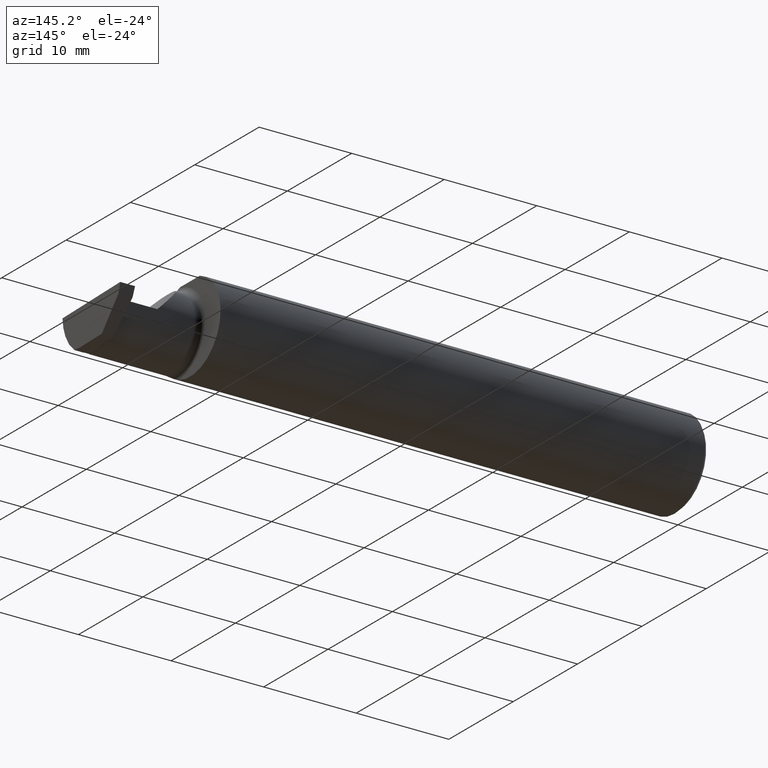
[diagram: clean part render]
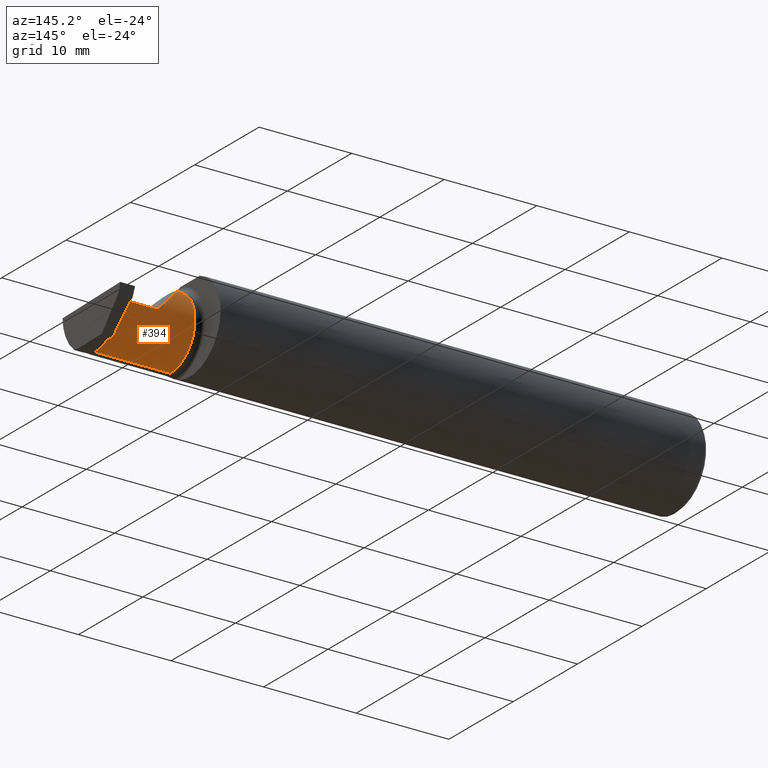
[diagram: same view with one face highlighted and labeled with its STEP entity id]
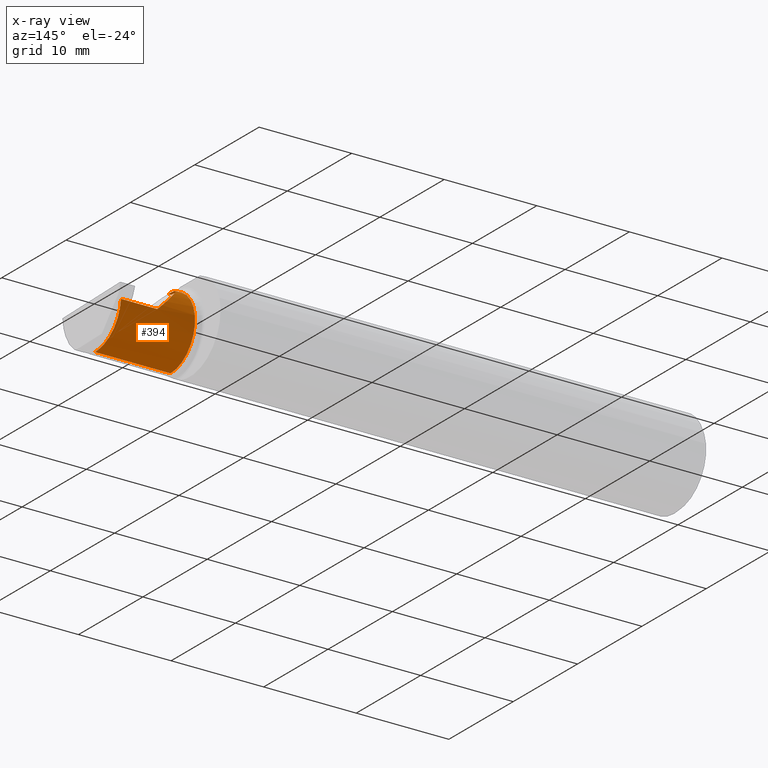
[diagram: x-ray of the same camera — body ghosted, the highlighted face saturated]
A machine part, auxiliary view. The second image highlights one B-rep face of the part: STEP entity #394.
The next image is the same camera in x-ray: the body ghosted, the highlighted face saturated — about 0% of this face is hidden behind the body in this view.
In plain terms, the highlighted cylindrical surface (partial cylindrical patch) has radius 3.81 mm, axis along (-1, -0, -0).
Its self-contained STEP definition (entity closure, byte-faithful):
#64 = CARTESIAN_POINT ( 'NONE',  ( 2.110000000000001208, -0.08334999999999996578, 0.1499999999999999944 ) ) ;
#110 = LINE ( 'NONE', #183, #895 ) ;
#119 = ORIENTED_EDGE ( 'NONE', *, *, #506, .T. ) ;
#131 = CARTESIAN_POINT ( 'NONE',  ( 2.110000000000001208, -0.08334999999999996578, 0.1499999999999999944 ) ) ;
#136 = CARTESIAN_POINT ( 'NONE',  ( 2.075000000000000178, 0.06665000000000002867, 5.204748896376252548E-17 ) ) ;
#151 = B_SPLINE_CURVE_WITH_KNOTS ( 'NONE', 3,
 ( #760, #928, #1007, #431, #847, #602, #829, #924, #267, #351, #525, #914, #691, #1001 ),
 .UNSPECIFIED., .F., .F.,
 ( 4, 2, 2, 2, 2, 2, 4 ),
 ( 0.000000000000000000, 0.001502809041486050622, 0.002254213562229075932, 0.003005618082972101243, 0.003757022603715126554, 0.004508427124458151865, 0.006011236165944202486 ),
 .UNSPECIFIED. ) ;
#156 = ORIENTED_EDGE ( 'NONE', *, *, #237, .T. ) ;
#168 = EDGE_CURVE ( 'NONE', #713, #356, #151, .T. ) ;
#171 = VECTOR ( 'NONE', #793, 39.37007874015748143 ) ;
#174 = ORIENTED_EDGE ( 'NONE', *, *, #168, .T. ) ;
#183 = CARTESIAN_POINT ( 'NONE',  ( 2.075000000000000178, -0.08334999999999995191, -0.1499999999999999944 ) ) ;
#207 = VERTEX_POINT ( 'NONE', #825 ) ;
#220 = CARTESIAN_POINT ( 'NONE',  ( 2.172132034355964691, 0.06665000000000001479, 0.08786796564403576149 ) ) ;
#237 = EDGE_CURVE ( 'NONE', #775, #853, #667, .T. ) ;
#245 = DIRECTION ( 'NONE',  ( -1.000000000000000000, -0.000000000000000000, -0.000000000000000000 ) ) ;
#246 = EDGE_CURVE ( 'NONE', #853, #713, #384, .T. ) ;
#267 = CARTESIAN_POINT ( 'NONE',  ( 2.419625853368147617, 0.008070055702243027207, -0.1193229055796835997 ) ) ;
#292 = CARTESIAN_POINT ( 'NONE',  ( 2.075000000000000178, -0.08334999999999996578, 0.000000000000000000 ) ) ;
#295 = DIRECTION ( 'NONE',  ( 0.000000000000000000, 0.000000000000000000, 1.000000000000000000 ) ) ;
#302 = CIRCLE ( 'NONE', #666, 0.1499999999999999944 ) ;
#351 = CARTESIAN_POINT ( 'NONE',  ( 2.420047394350710590, -0.008191921905021130532, -0.1301800509972567133 ) ) ;
#353 = VECTOR ( 'NONE', #245, 39.37007874015748143 ) ;
#356 = VERTEX_POINT ( 'NONE', #945 ) ;
#384 = LINE ( 'NONE', #136, #171 ) ;
#394 = ADVANCED_FACE ( 'NONE', ( #473 ), #852, .T. ) ;
#416 = VERTEX_POINT ( 'NONE', #572 ) ;
#431 = CARTESIAN_POINT ( 'NONE',  ( 2.417584115952524648, 0.05145648350381303721, -0.06650224100886607814 ) ) ;
#458 = CARTESIAN_POINT ( 'NONE',  ( 2.260000000000000231, 0.06665000000000002867, 2.939152317953647352E-17 ) ) ;
#473 = FACE_OUTER_BOUND ( 'NONE', #604, .T. ) ;
#486 = CARTESIAN_POINT ( 'NONE',  ( 2.075000000000000178, -0.08334999999999996578, 0.1499999999999999944 ) ) ;
#503 = ORIENTED_EDGE ( 'NONE', *, *, #944, .F. ) ;
#506 = EDGE_CURVE ( 'NONE', #356, #416, #110, .T. ) ;
#525 = CARTESIAN_POINT ( 'NONE',  ( 2.420195206333485949, -0.01680787643113945337, -0.1347941485732855327 ) ) ;
#546 = DIRECTION ( 'NONE',  ( -1.000000000000000000, -0.000000000000000000, -0.000000000000000000 ) ) ;
#572 = CARTESIAN_POINT ( 'NONE',  ( 2.100000000000000089, -0.08334999999999995191, -0.1499999999999999944 ) ) ;
#602 = CARTESIAN_POINT ( 'NONE',  ( 2.418501686259209915, 0.03584079016566094761, -0.09159665302155009514 ) ) ;
#604 = EDGE_LOOP ( 'NONE', ( #174, #119, #873, #503, #156, #710 ) ) ;
#648 = AXIS2_PLACEMENT_3D ( 'NONE', #292, #1014, #295 ) ;
#666 = AXIS2_PLACEMENT_3D ( 'NONE', #1017, #546, #1022 ) ;
#667 =( BOUNDED_CURVE ( )  B_SPLINE_CURVE ( 3, ( #131, #1011, #220, #933 ),
 .UNSPECIFIED., .F., .T. ) 
 B_SPLINE_CURVE_WITH_KNOTS ( ( 4, 4 ),
 ( 0.000000000000000000, 1.570796326794896558 ),
 .UNSPECIFIED. ) 
 CURVE ( )  GEOMETRIC_REPRESENTATION_ITEM ( )  RATIONAL_B_SPLINE_CURVE ( ( 1.000000000000000000, 0.8047378541243649375, 0.8047378541243649375, 1.000000000000000000 ) ) 
 REPRESENTATION_ITEM ( '' )  );
#691 = CARTESIAN_POINT ( 'NONE',  ( 2.420823134229770357, -0.06360486374412598065, -0.1500000000000002442 ) ) ;
#710 = ORIENTED_EDGE ( 'NONE', *, *, #246, .T. ) ;
#713 = VERTEX_POINT ( 'NONE', #1003 ) ;
#760 = CARTESIAN_POINT ( 'NONE',  ( 2.415000000000238956, 0.06664999999976051193, 8.151265848729768027E-18 ) ) ;
#769 = EDGE_CURVE ( 'NONE', #207, #416, #302, .T. ) ;
#775 = VERTEX_POINT ( 'NONE', #64 ) ;
#793 = DIRECTION ( 'NONE',  ( 1.000000000000000000, 0.000000000000000000, 0.000000000000000000 ) ) ;
#825 = CARTESIAN_POINT ( 'NONE',  ( 2.100000000000000089, -0.08334999999999996578, 0.1499999999999999944 ) ) ;
#829 = CARTESIAN_POINT ( 'NONE',  ( 2.418778796847657286, 0.02964324880582033458, -0.09913906102354901051 ) ) ;
#847 = CARTESIAN_POINT ( 'NONE',  ( 2.417917589723255212, 0.04676325656223011967, -0.07527902610844632025 ) ) ;
#852 = CYLINDRICAL_SURFACE ( 'NONE', #648, 0.1499999999999999944 ) ;
#853 = VERTEX_POINT ( 'NONE', #458 ) ;
#873 = ORIENTED_EDGE ( 'NONE', *, *, #769, .F. ) ;
#895 = VECTOR ( 'NONE', #907, 39.37007874015748143 ) ;
#907 = DIRECTION ( 'NONE',  ( -1.000000000000000000, -0.000000000000000000, -0.000000000000000000 ) ) ;
#914 = CARTESIAN_POINT ( 'NONE',  ( 2.420601194472301820, -0.04414772474447203887, -0.1461247700062918153 ) ) ;
#924 = CARTESIAN_POINT ( 'NONE',  ( 2.419340708857770750, 0.01578456816674046054, -0.1129971906319749142 ) ) ;
#928 = CARTESIAN_POINT ( 'NONE',  ( 2.415759755271787323, 0.06664999999591597613, -0.01979751736062848946 ) ) ;
#933 = CARTESIAN_POINT ( 'NONE',  ( 2.260000000000000231, 0.06665000000000002867, 2.939152317953647352E-17 ) ) ;
#944 = EDGE_CURVE ( 'NONE', #775, #207, #1033, .T. ) ;
#945 = CARTESIAN_POINT ( 'NONE',  ( 2.420802669072606772, -0.08335000000000176990, -0.1499999999999999389 ) ) ;
#1001 = CARTESIAN_POINT ( 'NONE',  ( 2.420802669072606772, -0.08335000000000176990, -0.1499999999999999389 ) ) ;
#1003 = CARTESIAN_POINT ( 'NONE',  ( 2.415000000000238956, 0.06664999999976051193, 8.151265848729768027E-18 ) ) ;
#1007 = CARTESIAN_POINT ( 'NONE',  ( 2.416485557519904681, 0.06268191249667449949, -0.03944647953904122095 ) ) ;
#1011 = CARTESIAN_POINT ( 'NONE',  ( 2.110000000000001208, 0.004517965644035767080, 0.1500000000000000222 ) ) ;
#1014 = DIRECTION ( 'NONE',  ( -1.000000000000000000, -0.000000000000000000, -0.000000000000000000 ) ) ;
#1017 = CARTESIAN_POINT ( 'NONE',  ( 2.100000000000000089, -0.08334999999999996578, 0.000000000000000000 ) ) ;
#1022 = DIRECTION ( 'NONE',  ( 0.000000000000000000, 0.000000000000000000, 1.000000000000000000 ) ) ;
#1033 = LINE ( 'NONE', #486, #353 ) ;